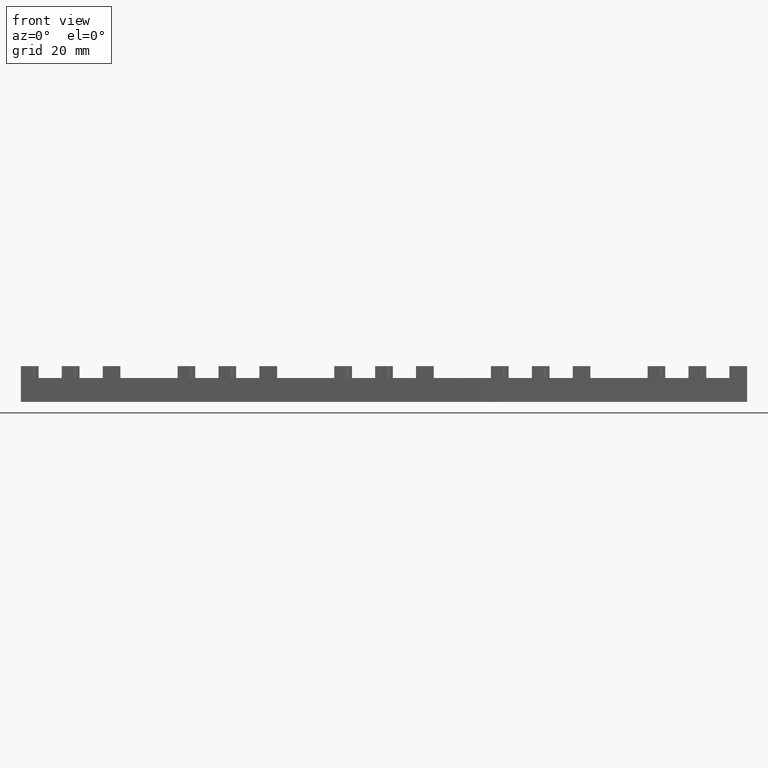
[diagram: clean part render]
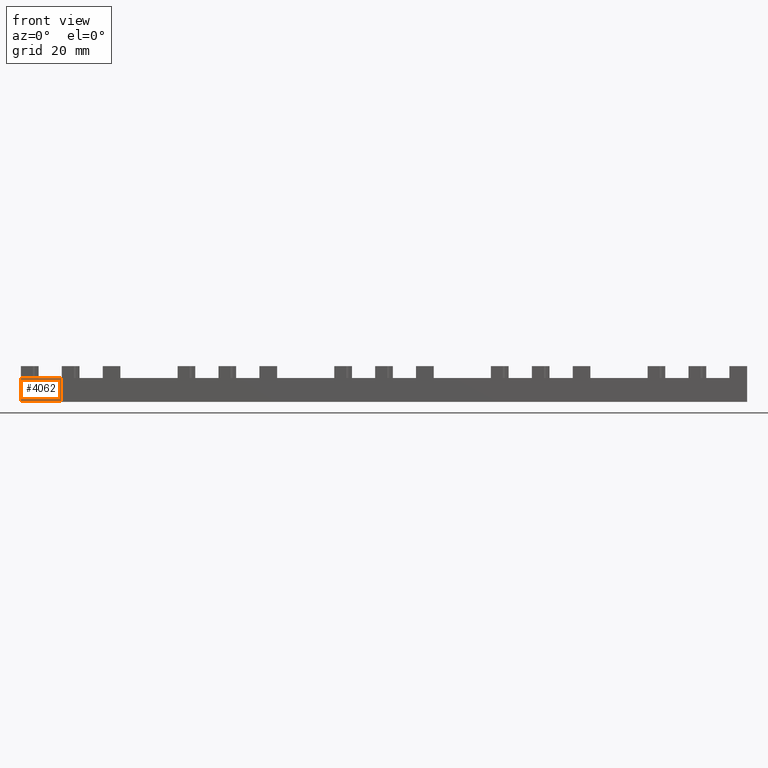
[diagram: same view with one face highlighted and labeled with its STEP entity id]
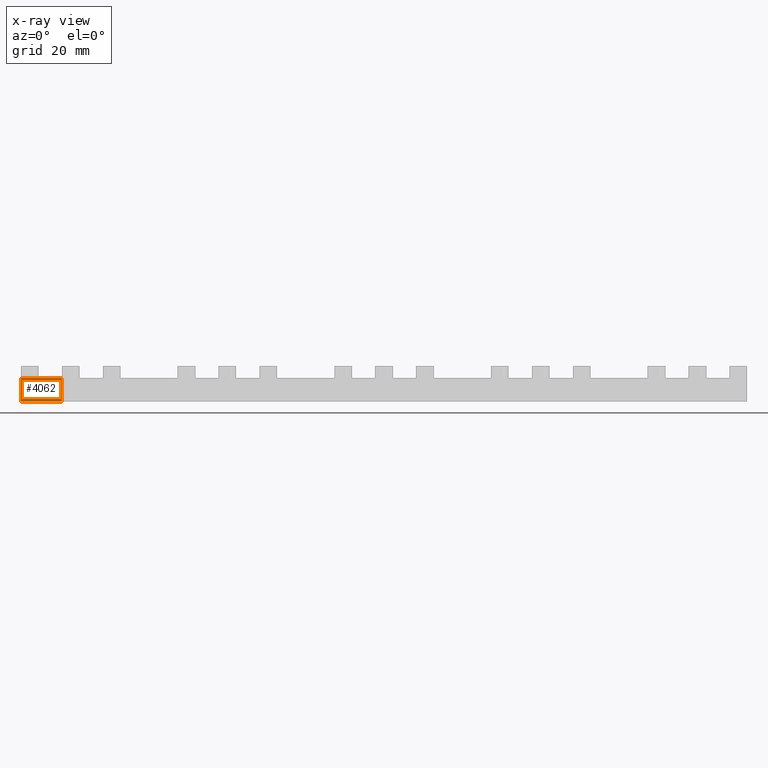
[diagram: x-ray of the same camera — body ghosted, the highlighted face saturated]
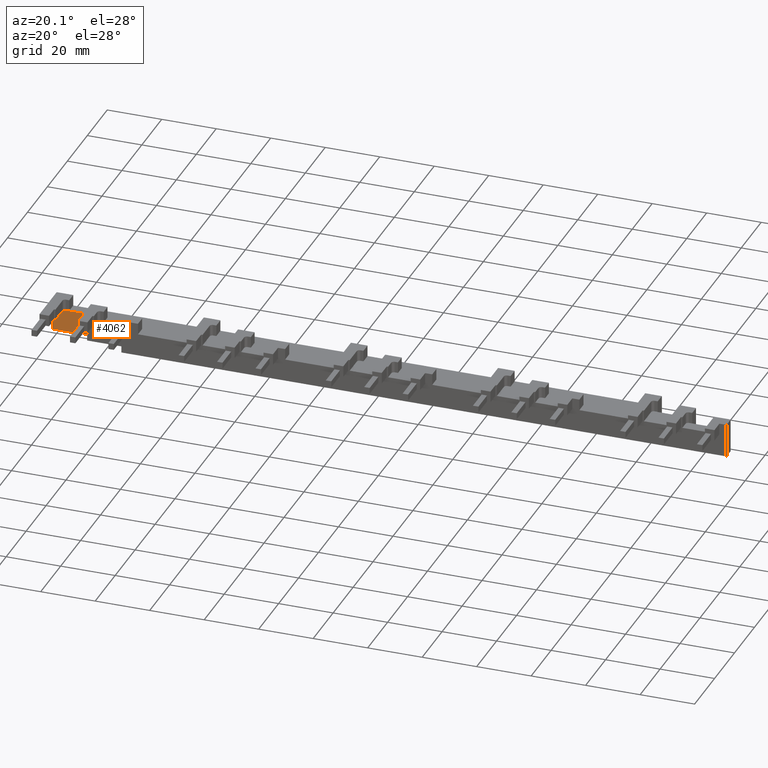
[diagram: same view with one face highlighted and labeled with its STEP entity id]
A machine part, front view. The second image highlights one B-rep face of the part: STEP entity #4062.
The next image is the same camera in x-ray: the body ghosted, the highlighted face saturated — about 0% of this face is hidden behind the body in this view.
A second angle (auxiliary view) of the same face is appended — the face is thin or edge-on in the first view.
In plain terms, the highlighted planar face has unit normal (0, 1, 0).
Its self-contained STEP definition (entity closure, byte-faithful):
#627=CARTESIAN_POINT('',(4.564110105646948,-4.200000000007777,108.20000000000005));
#628=VERTEX_POINT('',#627);
#636=CARTESIAN_POINT('',(14.099999999999685,-4.200000000007777,108.20000000000005));
#637=VERTEX_POINT('',#636);
#638=CARTESIAN_POINT('',(4.564110105646948,-4.200000000007777,108.20000000000005));
#639=DIRECTION('',(1.0,0.0,0.0));
#640=VECTOR('',#639,9.535889894352737);
#641=LINE('',#638,#640);
#642=EDGE_CURVE('',#628,#637,#641,.T.);
#4024=CARTESIAN_POINT('',(7.049999999999843,-4.200000000007777,104.10000000000004));
#4025=DIRECTION('',(0.0,1.0,0.0));
#4026=DIRECTION('',(0.0,0.0,1.0));
#4027=AXIS2_PLACEMENT_3D('',#4024,#4025,#4026);
#4028=PLANE('',#4027);
#4029=CARTESIAN_POINT('',(1.049338E-015,-4.200000000007777,108.20000000000005));
#4030=VERTEX_POINT('',#4029);
#4031=CARTESIAN_POINT('',(-9.035849E-031,-4.200000000007777,100.00000000000006));
#4032=VERTEX_POINT('',#4031);
#4033=CARTESIAN_POINT('',(1.049338E-015,-4.200000000007777,108.20000000000005));
#4034=DIRECTION('',(0.0,0.0,-1.0));
#4035=VECTOR('',#4034,8.200000000000003);
#4036=LINE('',#4033,#4035);
#4037=EDGE_CURVE('',#4030,#4032,#4036,.T.);
#4038=ORIENTED_EDGE('',*,*,#4037,.T.);
#4039=CARTESIAN_POINT('',(14.099999999999683,-4.200000000007777,100.00000000000003));
#4040=VERTEX_POINT('',#4039);
#4041=CARTESIAN_POINT('',(14.099999999999689,-4.200000000007777,100.00000000000003));
#4042=DIRECTION('',(-1.0,0.0,0.0));
#4043=VECTOR('',#4042,14.099999999999689);
#4044=LINE('',#4041,#4043);
#4045=EDGE_CURVE('',#4040,#4032,#4044,.T.);
#4046=ORIENTED_EDGE('',*,*,#4045,.F.);
#4047=CARTESIAN_POINT('',(14.099999999999683,-4.200000000007777,108.20000000000005));
#4048=DIRECTION('',(0.0,0.0,-1.0));
#4049=VECTOR('',#4048,8.200000000000003);
#4050=LINE('',#4047,#4049);
#4051=EDGE_CURVE('',#637,#4040,#4050,.T.);
#4052=ORIENTED_EDGE('',*,*,#4051,.F.);
#4053=ORIENTED_EDGE('',*,*,#642,.F.);
#4054=CARTESIAN_POINT('',(8.881784E-016,-4.200000000007777,108.20000000000005));
#4055=DIRECTION('',(1.0,0.0,0.0));
#4056=VECTOR('',#4055,4.564110105646948);
#4057=LINE('',#4054,#4056);
#4058=EDGE_CURVE('',#4030,#628,#4057,.T.);
#4059=ORIENTED_EDGE('',*,*,#4058,.F.);
#4060=EDGE_LOOP('',(#4038,#4046,#4052,#4053,#4059));
#4061=FACE_OUTER_BOUND('',#4060,.T.);
#4062=ADVANCED_FACE('',(#4061),#4028,.F.);